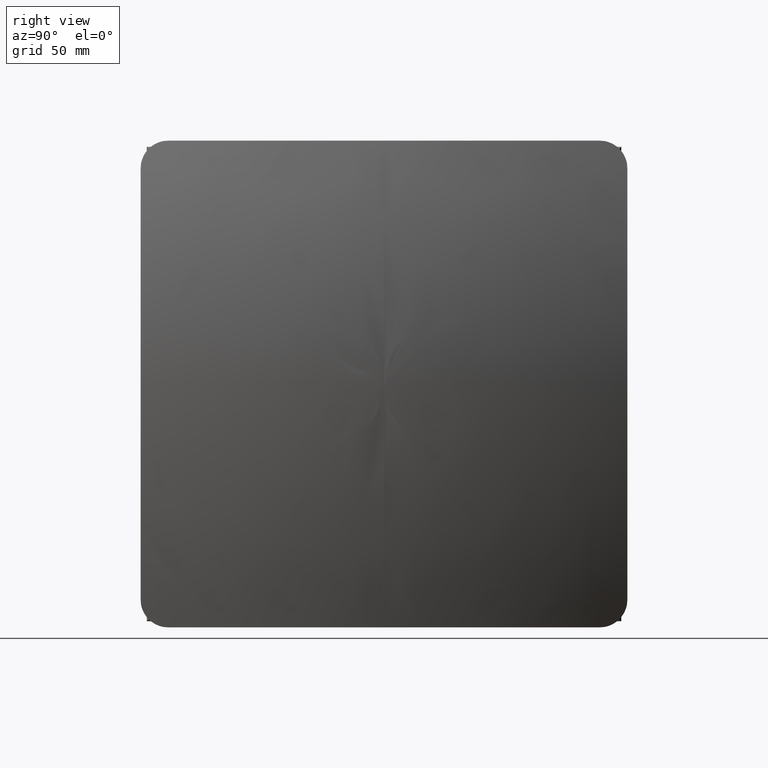
[diagram: clean part render]
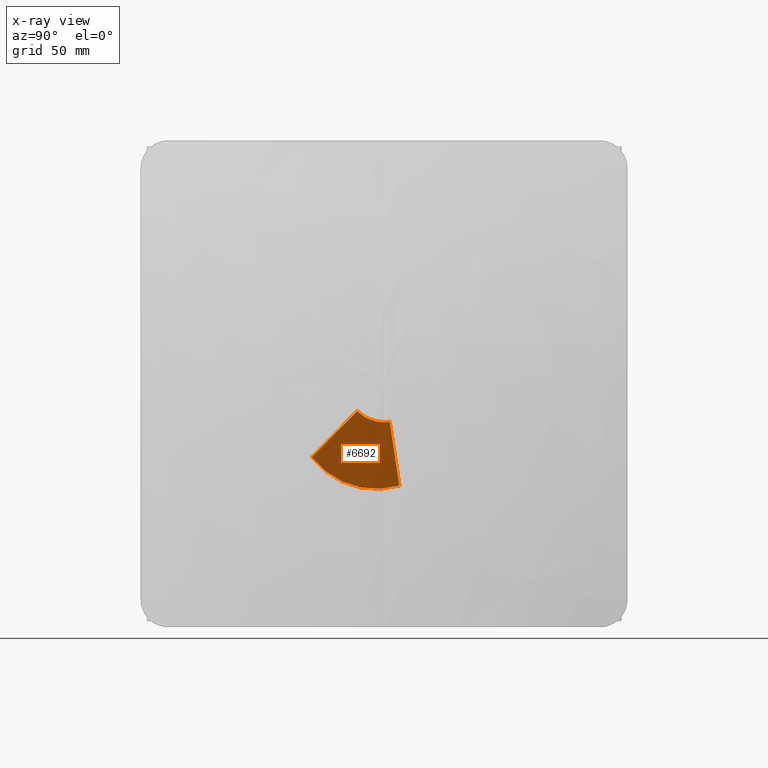
[diagram: x-ray — body ghosted, one internal face saturated and labeled with its STEP entity id]
A machine part, right view, then the same camera in x-ray: the body is ghosted and one INTERNAL B-rep face — a face not visible from any outside direction — is saturated and labeled: STEP entity #6692.
In plain terms, the highlighted planar face has unit normal (-0.866, -0.4755, 0.1545).
Its self-contained STEP definition (entity closure, byte-faithful):
#127 = CARTESIAN_POINT ( 'NONE',  ( -0.7136134350403541271, -2.067649164122855154, -2.099282151789488626 ) ) ;
#227 = VERTEX_POINT ( 'NONE', #13897 ) ;
#409 = CARTESIAN_POINT ( 'NONE',  ( -1.757926315328914635, 0.1635359131630836904, -1.085809932281334378 ) ) ;
#531 = VECTOR ( 'NONE', #9852, 39.37007874015748854 ) ;
#614 = CARTESIAN_POINT ( 'NONE',  ( -1.190892582308881842, -0.7705263979272162223, -0.7823146898992672238 ) ) ;
#1213 = EDGE_CURVE ( 'NONE', #12426, #4410, #11759, .T. ) ;
#1599 = DIRECTION ( 'NONE',  ( -0.2500000000000005551, 0.1442029844433490027, -0.9574473872112404527 ) ) ;
#1642 = CIRCLE ( 'NONE', #2159, 3.043184055118114628 ) ;
#2159 = AXIS2_PLACEMENT_3D ( 'NONE', #2237, #9462, #4694 ) ;
#2237 = CARTESIAN_POINT ( 'NONE',  ( -1.474409448818893908, 1.402201471351850232E-12, 4.325862122171378672E-12 ) ) ;
#2406 =( BOUNDED_CURVE ( )  B_SPLINE_CURVE ( 3, ( #614, #3008, #13966, #15075 ),
 .UNSPECIFIED., .F., .T. ) 
 B_SPLINE_CURVE_WITH_KNOTS ( ( 4, 4 ),
 ( 4.248741371383884413, 5.176036589385496711 ),
 .UNSPECIFIED. ) 
 CURVE ( )  GEOMETRIC_REPRESENTATION_ITEM ( )  RATIONAL_B_SPLINE_CURVE ( ( 1.000000000000000000, 0.9296181273332770889, 0.9296181273332770889, 1.000000000000000000 ) ) 
 REPRESENTATION_ITEM ( '' )  );
#3008 = CARTESIAN_POINT ( 'NONE',  ( -1.372748756765585609, -0.5196264100752820969, -1.029433996714822719 ) ) ;
#3033 = LINE ( 'NONE', #409, #13611 ) ;
#3149 = CARTESIAN_POINT ( 'NONE',  ( -1.190892582308881842, -0.7705263979272162223, -0.7823146898992672238 ) ) ;
#3208 = AXIS2_PLACEMENT_3D ( 'NONE', #12470, #11198, #15090 ) ;
#3770 = ORIENTED_EDGE ( 'NONE', *, *, #4221, .F. ) ;
#4221 = EDGE_CURVE ( 'NONE', #227, #12426, #1642, .T. ) ;
#4410 = VERTEX_POINT ( 'NONE', #3149 ) ;
#4694 = DIRECTION ( 'NONE',  ( 0.4813080654835480976, -0.8765515079563119816, 0.000000000000000000 ) ) ;
#4853 = CARTESIAN_POINT ( 'NONE',  ( -0.7136134350403551263, -2.067649164122855154, -2.099282151789488182 ) ) ;
#5876 = CARTESIAN_POINT ( 'NONE',  ( -1.757926315328913969, 0.1635359131630833296, -1.085809932281333268 ) ) ;
#6361 = FACE_OUTER_BOUND ( 'NONE', #12656, .T. ) ;
#6692 = ADVANCED_FACE ( 'NONE', ( #6361 ), #12545, .F. ) ;
#7220 = ORIENTED_EDGE ( 'NONE', *, *, #1213, .F. ) ;
#8784 = EDGE_CURVE ( 'NONE', #15414, #227, #3033, .T. ) ;
#9462 = DIRECTION ( 'NONE',  ( -0.8660254037844387076, -0.4755282581475767656, 0.1545084971874739477 ) ) ;
#9852 = DIRECTION ( 'NONE',  ( -0.2499999999999994171, 0.6794361191029831826, 0.6898308198814235848 ) ) ;
#10515 = ORIENTED_EDGE ( 'NONE', *, *, #12231, .F. ) ;
#11198 = DIRECTION ( 'NONE',  ( -0.8660254037844387076, -0.4755282581475767101, 0.1545084971874739754 ) ) ;
#11667 = ORIENTED_EDGE ( 'NONE', *, *, #8784, .F. ) ;
#11759 = LINE ( 'NONE', #4853, #531 ) ;
#12231 = EDGE_CURVE ( 'NONE', #4410, #15414, #2406, .T. ) ;
#12426 = VERTEX_POINT ( 'NONE', #127 ) ;
#12470 = CARTESIAN_POINT ( 'NONE',  ( -1.474409448819220758, -0.5730056676764843093, -1.763530110117838667 ) ) ;
#12545 = PLANE ( 'NONE',  #3208 ) ;
#12656 = EDGE_LOOP ( 'NONE', ( #7220, #3770, #11667, #10515 ) ) ;
#13611 = VECTOR ( 'NONE', #1599, 39.37007874015748143 ) ;
#13897 = CARTESIAN_POINT ( 'NONE',  ( -2.235205462597933845, 0.4388362229581608265, -2.913688622373859172 ) ) ;
#13966 = CARTESIAN_POINT ( 'NONE',  ( -1.576070140872210645, -0.1846995250005216416, -1.138258338473547404 ) ) ;
#15075 = CARTESIAN_POINT ( 'NONE',  ( -1.757926315328913969, 0.1635359131630833296, -1.085809932281333268 ) ) ;
#15090 = DIRECTION ( 'NONE',  ( 0.4813080654835480421, -0.8765515079563119816, 0.000000000000000000 ) ) ;
#15414 = VERTEX_POINT ( 'NONE', #5876 ) ;